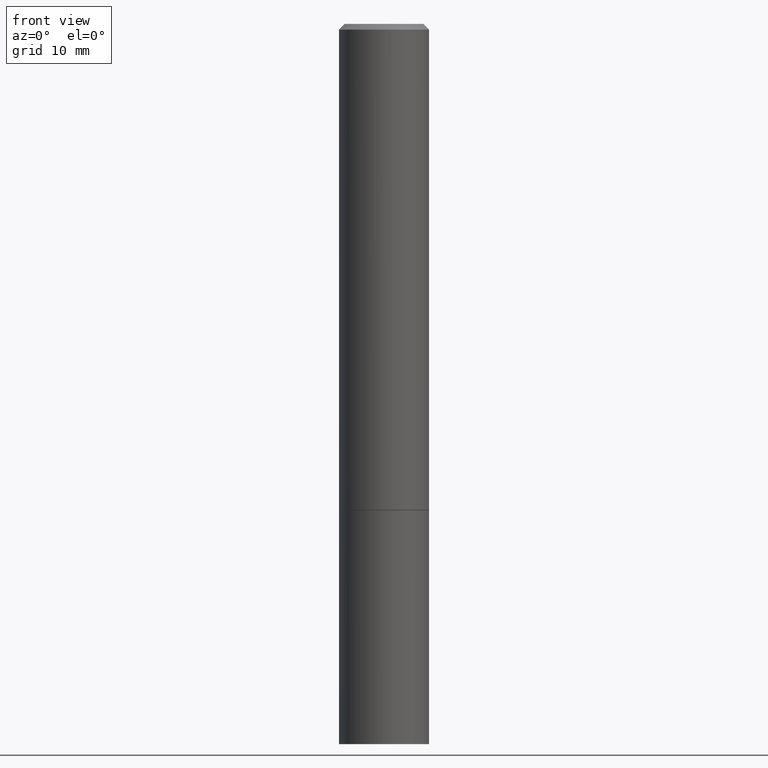
[diagram: clean part render]
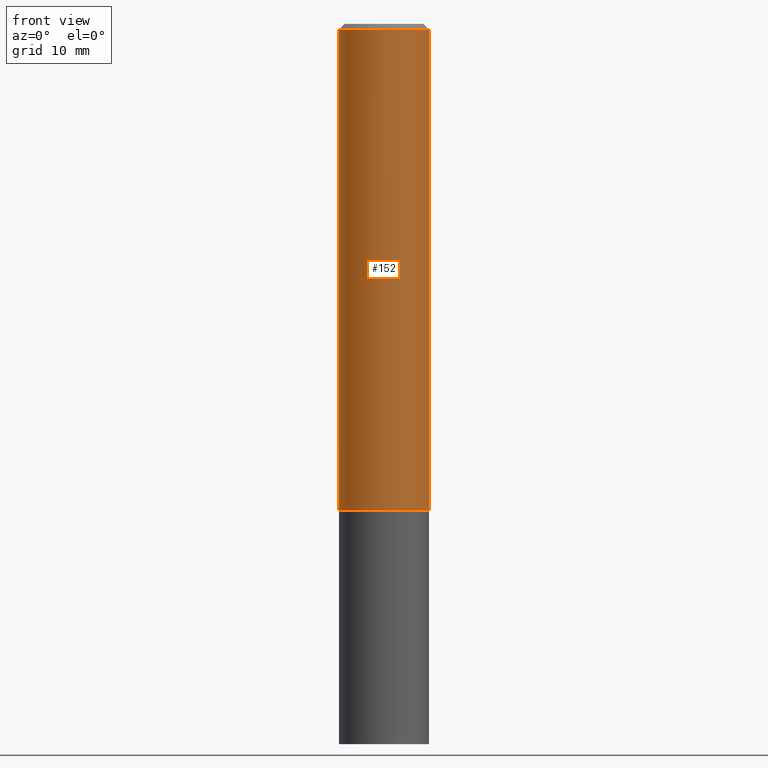
[diagram: same view with one face highlighted and labeled with its STEP entity id]
A machine part, front view. The second image highlights one B-rep face of the part: STEP entity #152.
In plain terms, the highlighted cylindrical surface (partial cylindrical patch) has radius 3.9687 mm, axis along (-0, 0, 1).
Its self-contained STEP definition (entity closure, byte-faithful):
#1 = EDGE_CURVE ( 'NONE', #228, #45, #48, .T. ) ;
#18 = ORIENTED_EDGE ( 'NONE', *, *, #1, .T. ) ;
#27 = DIRECTION ( 'NONE',  ( -2.445468806185136877E-29, 3.491481338843145188E-15, 1.000000000000000000 ) ) ;
#29 = ORIENTED_EDGE ( 'NONE', *, *, #352, .T. ) ;
#42 = AXIS2_PLACEMENT_3D ( 'NONE', #219, #330, #163 ) ;
#45 = VERTEX_POINT ( 'NONE', #94 ) ;
#48 = CIRCLE ( 'NONE', #72, 0.1562500000000000000 ) ;
#72 = AXIS2_PLACEMENT_3D ( 'NONE', #159, #215, #153 ) ;
#89 = VECTOR ( 'NONE', #91, 39.37007874015748143 ) ;
#91 = DIRECTION ( 'NONE',  ( -2.445468806185136877E-29, 3.491481338843145188E-15, 1.000000000000000000 ) ) ;
#94 = CARTESIAN_POINT ( 'NONE',  ( 0.1562500000000000000, -6.981216937016866506E-15, -1.687000000000000055 ) ) ;
#96 = CIRCLE ( 'NONE', #302, 0.1562499999999998057 ) ;
#108 = DIRECTION ( 'NONE',  ( 1.000000000000000000, -6.982962677686265133E-15, 0.000000000000000000 ) ) ;
#113 = DIRECTION ( 'NONE',  ( -2.445468806185136597E-29, 3.491481338843145583E-15, 1.000000000000000000 ) ) ;
#134 = CYLINDRICAL_SURFACE ( 'NONE', #42, 0.1562499999999999167 ) ;
#136 = CARTESIAN_POINT ( 'NONE',  ( -0.1562500000000000000, -1.869756298077466803E-15, -1.687000000000000055 ) ) ;
#149 = CARTESIAN_POINT ( 'NONE',  ( 0.1562499999999998057, -1.141782438928663330E-15, -0.02000000000000003511 ) ) ;
#152 = ADVANCED_FACE ( 'NONE', ( #193 ), #134, .T. ) ;
#153 = DIRECTION ( 'NONE',  ( 1.000000000000000000, -6.982962677686269077E-15, 0.000000000000000000 ) ) ;
#159 = CARTESIAN_POINT ( 'NONE',  ( 4.125505876034325766E-29, -5.890129018628387333E-15, -1.687000000000000055 ) ) ;
#163 = DIRECTION ( 'NONE',  ( 1.000000000000000000, -6.982962677686265133E-15, 4.876176775795935232E-29 ) ) ;
#187 = EDGE_CURVE ( 'NONE', #228, #294, #332, .T. ) ;
#193 = FACE_OUTER_BOUND ( 'NONE', #297, .T. ) ;
#209 = CARTESIAN_POINT ( 'NONE',  ( -0.1562499999999998057, 1.021258291611614692E-15, -0.02000000000000003511 ) ) ;
#211 = ORIENTED_EDGE ( 'NONE', *, *, #213, .F. ) ;
#213 = EDGE_CURVE ( 'NONE', #294, #341, #96, .T. ) ;
#215 = DIRECTION ( 'NONE',  ( -2.445468806185136597E-29, 3.491481338843145583E-15, 1.000000000000000000 ) ) ;
#219 = CARTESIAN_POINT ( 'NONE',  ( 0.000000000000000000, 0.000000000000000000, 0.000000000000000000 ) ) ;
#228 = VERTEX_POINT ( 'NONE', #136 ) ;
#254 = CARTESIAN_POINT ( 'NONE',  ( 0.1562499999999999167, -1.091087918388478385E-15, 7.619026212181144772E-30 ) ) ;
#260 = LINE ( 'NONE', #254, #89 ) ;
#278 = VECTOR ( 'NONE', #27, 39.37007874015748143 ) ;
#281 = CARTESIAN_POINT ( 'NONE',  ( -0.1562499999999999167, 1.110223024625155949E-15, -7.685836078523285555E-30 ) ) ;
#294 = VERTEX_POINT ( 'NONE', #209 ) ;
#297 = EDGE_LOOP ( 'NONE', ( #336, #18, #29, #211 ) ) ;
#302 = AXIS2_PLACEMENT_3D ( 'NONE', #337, #113, #108 ) ;
#330 = DIRECTION ( 'NONE',  ( -2.445468806185136597E-29, 3.491481338843145583E-15, 1.000000000000000000 ) ) ;
#332 = LINE ( 'NONE', #281, #278 ) ;
#336 = ORIENTED_EDGE ( 'NONE', *, *, #187, .F. ) ;
#337 = CARTESIAN_POINT ( 'NONE',  ( 4.890937612370281041E-31, -6.982962677686302702E-17, -0.02000000000000003511 ) ) ;
#341 = VERTEX_POINT ( 'NONE', #149 ) ;
#352 = EDGE_CURVE ( 'NONE', #45, #341, #260, .T. ) ;